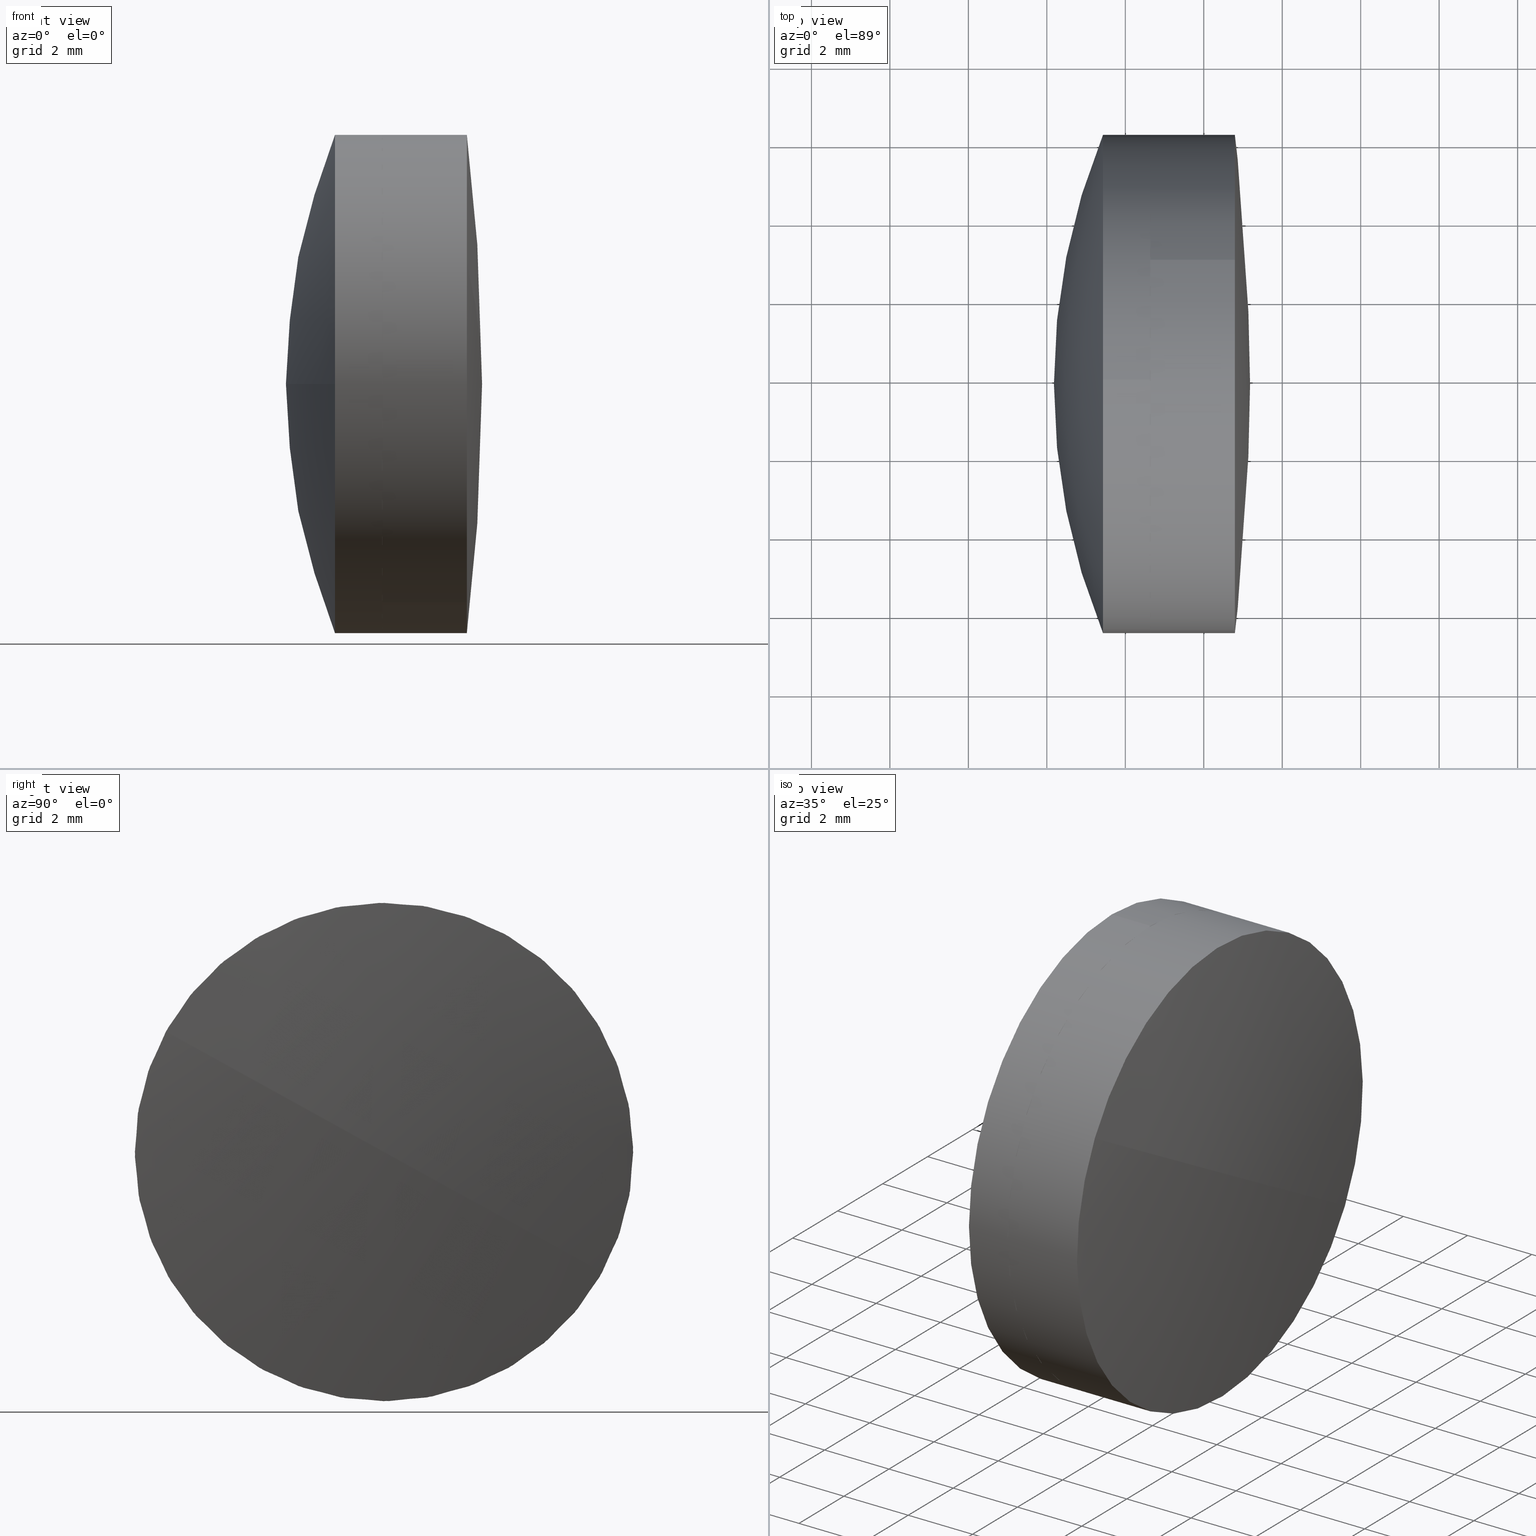
[diagram: canonical four-view strip — front | top / right | iso, engineering-drawing reading convention]
A machine part, canonical four-view strip (front | top / right | iso — engineering-drawing reading convention). The complete STEP part file that produces these views, byte-faithful:
ISO-10303-21;
HEADER;
FILE_DESCRIPTION (( 'STEP AP203' ),
    '1' );
FILE_NAME ('145272.STEP',
    '2024-05-11T02:47:36',
    ( '' ),
    ( '' ),
    'SwSTEP 2.0',
    'SolidWorks 2020',
    '' );
FILE_SCHEMA (( 'CONFIG_CONTROL_DESIGN' ));
ENDSEC;

DATA;
#1 = CARTESIAN_POINT ( 'NONE',  ( -66.56896664335823743, 13.86148696857247842, 6.349999999999999645 ) ) ;
#2 = ORIENTED_EDGE ( 'NONE', *, *, #291, .T. ) ;
#3 =( GEOMETRIC_REPRESENTATION_CONTEXT ( 3 ) GLOBAL_UNCERTAINTY_ASSIGNED_CONTEXT ( ( #8 ) ) GLOBAL_UNIT_ASSIGNED_CONTEXT ( ( #436, #433, #284 ) ) REPRESENTATION_CONTEXT ( 'NONE', 'WORKASPACE' ) );
#4 = ADVANCED_FACE ( 'NONE', ( #252 ), #128, .T. ) ;
#5 = DIRECTION ( 'NONE',  ( 1.173094865929737913E-16, 0.4836518060285192044, 0.8752604929535846567 ) ) ;
#6 = SPHERICAL_SURFACE ( 'NONE', #271, 52.14000000000000767 ) ;
#7 = FACE_OUTER_BOUND ( 'NONE', #304, .T. ) ;
#8 = UNCERTAINTY_MEASURE_WITH_UNIT (LENGTH_MEASURE( 1.000000000000000082E-05 ), #436, 'distance_accuracy_value', 'NONE');
#9 = DIRECTION ( 'NONE',  ( 0.000000000000000000, 0.4836518060285191489, 0.8752604929535845457 ) ) ;
#10 = APPROVAL_PERSON_ORGANIZATION ( #360, #340, #251 ) ;
#11 = EDGE_CURVE ( 'NONE', #445, #209, #308, .T. ) ;
#12 = FACE_OUTER_BOUND ( 'NONE', #288, .T. ) ;
#13 = PRODUCT ( '145272', '145272', '', ( #193 ) ) ;
#14 = CALENDAR_DATE ( 2024, 11, 5 ) ;
#15 = ADVANCED_FACE ( 'NONE', ( #332 ), #49, .T. ) ;
#16 = CC_DESIGN_APPROVAL ( #364, ( #391 ) ) ;
#17 = DIRECTION ( 'NONE',  ( -1.000000000000000000, 4.163336342344351818E-17, 1.110223024625159006E-16 ) ) ;
#18 = DIRECTION ( 'NONE',  ( 0.000000000000000000, 0.000000000000000000, 1.000000000000000000 ) ) ;
#19 = APPROVAL_STATUS ( 'not_yet_approved' ) ;
#20 = DIRECTION ( 'NONE',  ( 0.000000000000000000, 0.4836518060285191489, 0.8752604929535845457 ) ) ;
#21 = PERSON_AND_ORGANIZATION ( #279, #171 ) ;
#22 = ORIENTED_EDGE ( 'NONE', *, *, #160, .F. ) ;
#23 = AXIS2_PLACEMENT_3D ( 'NONE', #341, #174, #169 ) ;
#24 = EDGE_CURVE ( 'NONE', #95, #265, #63, .T. ) ;
#25 = CARTESIAN_POINT ( 'NONE',  ( -67.81928922736018706, 13.86148696857247842, 0.000000000000000000 ) ) ;
#26 = ORIENTED_EDGE ( 'NONE', *, *, #397, .F. ) ;
#27 = SPHERICAL_SURFACE ( 'NONE', #111, 13.82000000000000206 ) ;
#28 = DIRECTION ( 'NONE',  ( -0.000000000000000000, 0.000000000000000000, 1.000000000000000000 ) ) ;
#29 = EDGE_CURVE ( 'NONE', #71, #95, #165, .T. ) ;
#30 = ORIENTED_EDGE ( 'NONE', *, *, #86, .F. ) ;
#31 = CARTESIAN_POINT ( 'NONE',  ( -63.20740906827801098, 8.303582838317279169, 3.071188968281062692 ) ) ;
#32 = CARTESIAN_POINT ( 'NONE',  ( -63.81928922736018706, 13.86148696857249263, -6.893438519050638758E-15 ) ) ;
#33 = CARTESIAN_POINT ( 'NONE',  ( -77.63928922736018023, 13.86148696857247842, 0.000000000000000000 ) ) ;
#34 = CIRCLE ( 'NONE', #122, 6.349999999999999645 ) ;
#35 = AXIS2_PLACEMENT_3D ( 'NONE', #62, #224, #137 ) ;
#36 = ORIENTED_EDGE ( 'NONE', *, *, #86, .T. ) ;
#37 = CARTESIAN_POINT ( 'NONE',  ( -67.81928922736018706, 13.86148696857247842, 0.000000000000000000 ) ) ;
#38 = ORIENTED_EDGE ( 'NONE', *, *, #24, .T. ) ;
#39 = ORIENTED_EDGE ( 'NONE', *, *, #291, .F. ) ;
#40 = CARTESIAN_POINT ( 'NONE',  ( -67.81928922736018706, 13.86148696857247842, 6.349999999999999645 ) ) ;
#41 = CARTESIAN_POINT ( 'NONE',  ( -63.20740906827801098, 10.79029800029139530, -5.557904130255268527 ) ) ;
#42 = EDGE_CURVE ( 'NONE', #396, #382, #98, .T. ) ;
#43 = AXIS2_PLACEMENT_3D ( 'NONE', #323, #394, #18 ) ;
#44 = DIRECTION ( 'NONE',  ( -1.000000000000000000, 4.163336342344351818E-17, 1.110223024625159006E-16 ) ) ;
#45 = CARTESIAN_POINT ( 'NONE',  ( -63.20740906827801098, 19.41939109882771675, -3.071188968281085341 ) ) ;
#46 = EDGE_CURVE ( 'NONE', #159, #306, #34, .T. ) ;
#47 = APPROVAL_DATE_TIME ( #363, #340 ) ;
#48 = ORIENTED_EDGE ( 'NONE', *, *, #243, .F. ) ;
#49 = CYLINDRICAL_SURFACE ( 'NONE', #132, 6.349999999999999645 ) ;
#50 = CIRCLE ( 'NONE', #390, 6.349999999999999645 ) ;
#51 = ORIENTED_EDGE ( 'NONE', *, *, #97, .T. ) ;
#52 = AXIS2_PLACEMENT_3D ( 'NONE', #212, #350, #150 ) ;
#53 = ORIENTED_EDGE ( 'NONE', *, *, #397, .T. ) ;
#54 = APPROVAL_STATUS ( 'not_yet_approved' ) ;
#55 = ORIENTED_EDGE ( 'NONE', *, *, #175, .F. ) ;
#56 = CARTESIAN_POINT ( 'NONE',  ( -65.36452242713134808, 20.21148696857247984, 0.000000000000000000 ) ) ;
#57 = VERTEX_POINT ( 'NONE', #430 ) ;
#58 = VERTEX_POINT ( 'NONE', #127 ) ;
#59 = VERTEX_POINT ( 'NONE', #163 ) ;
#60 = CC_DESIGN_PERSON_AND_ORGANIZATION_ASSIGNMENT ( #21, #257, ( #13 ) ) ;
#61 = APPLICATION_PROTOCOL_DEFINITION ( 'international standard', 'config_control_design', 1994, #272 ) ;
#62 = CARTESIAN_POINT ( 'NONE',  ( -63.81928922736018706, 13.86148696857249263, -6.484157397467768041E-15 ) ) ;
#63 = CIRCLE ( 'NONE', #213, 6.349999999999999645 ) ;
#64 = LOCAL_TIME ( 10, 47, 36.00000000000000000, #322 ) ;
#65 = DATE_AND_TIME ( #105, #85 ) ;
#66 = DIRECTION ( 'NONE',  ( -1.000000000000000000, 4.163336342344351818E-17, 1.110223024625159006E-16 ) ) ;
#67 = CC_DESIGN_DATE_AND_TIME_ASSIGNMENT ( #286, #404, ( #391 ) ) ;
#68 = DIRECTION ( 'NONE',  ( 0.000000000000000000, 0.8752604929535845457, -0.4836518060285189824 ) ) ;
#69 = FACE_OUTER_BOUND ( 'NONE', #412, .T. ) ;
#70 = AXIS2_PLACEMENT_3D ( 'NONE', #424, #115, #84 ) ;
#71 = VERTEX_POINT ( 'NONE', #258 ) ;
#72 = VERTEX_POINT ( 'NONE', #254 ) ;
#73 = CARTESIAN_POINT ( 'NONE',  ( -51.06928922736017995, 13.86148696857247842, 0.000000000000000000 ) ) ;
#74 = CC_DESIGN_DATE_AND_TIME_ASSIGNMENT ( #324, #126, ( #392 ) ) ;
#75 = CARTESIAN_POINT ( 'NONE',  ( -67.81928922736018706, 13.86148696857247842, -6.349999999999999645 ) ) ;
#76 = AXIS2_PLACEMENT_3D ( 'NONE', #242, #66, #261 ) ;
#77 = LOCAL_TIME ( 10, 47, 36.00000000000000000, #227 ) ;
#78 = ORIENTED_EDGE ( 'NONE', *, *, #222, .T. ) ;
#79 = FACE_OUTER_BOUND ( 'NONE', #428, .T. ) ;
#80 = EDGE_CURVE ( 'NONE', #344, #57, #371, .T. ) ;
#81 = CARTESIAN_POINT ( 'NONE',  ( -65.36452242713134808, 10.79029800029139530, -5.557904130255268527 ) ) ;
#82 = DIRECTION ( 'NONE',  ( -1.173094865929737913E-16, -0.4836518060285191489, -0.8752604929535845457 ) ) ;
#83 = CIRCLE ( 'NONE', #330, 6.349999999999999645 ) ;
#84 = DIRECTION ( 'NONE',  ( 0.000000000000000000, 0.4836518060285191489, 0.8752604929535845457 ) ) ;
#85 = LOCAL_TIME ( 10, 47, 36.00000000000000000, #161 ) ;
#86 = EDGE_CURVE ( 'NONE', #200, #358, #414, .T. ) ;
#87 = PERSON_AND_ORGANIZATION ( #279, #171 ) ;
#88 = CARTESIAN_POINT ( 'NONE',  ( -63.81928922736018706, 10.79029800029139707, -5.557904130255267638 ) ) ;
#89 = ORIENTED_EDGE ( 'NONE', *, *, #383, .F. ) ;
#90 = PERSON_AND_ORGANIZATION ( #279, #171 ) ;
#91 = ORIENTED_EDGE ( 'NONE', *, *, #46, .T. ) ;
#92 = PERSON_AND_ORGANIZATION_ROLE ( 'creator' ) ;
#93 = ORIENTED_EDGE ( 'NONE', *, *, #419, .F. ) ;
#94 = DIRECTION ( 'NONE',  ( 1.173094865929737913E-16, 0.4836518060285192044, 0.8752604929535846567 ) ) ;
#95 = VERTEX_POINT ( 'NONE', #56 ) ;
#96 = PERSON_AND_ORGANIZATION ( #279, #171 ) ;
#97 = EDGE_CURVE ( 'NONE', #382, #72, #179, .T. ) ;
#98 = LINE ( 'NONE', #88, #336 ) ;
#99 = SECURITY_CLASSIFICATION_LEVEL ( 'unclassified' ) ;
#100 = ORIENTED_EDGE ( 'NONE', *, *, #175, .T. ) ;
#101 = DIRECTION ( 'NONE',  ( 0.000000000000000000, 1.000000000000000000, 0.000000000000000000 ) ) ;
#102 = AXIS2_PLACEMENT_3D ( 'NONE', #135, #197, #230 ) ;
#103 = CIRCLE ( 'NONE', #180, 52.14000000000001478 ) ;
#104 = ADVANCED_FACE ( 'NONE', ( #166 ), #138, .T. ) ;
#105 = CALENDAR_DATE ( 2024, 11, 5 ) ;
#106 = SPHERICAL_SURFACE ( 'NONE', #377, 52.14000000000000767 ) ;
#107 = DIRECTION ( 'NONE',  ( 1.000000000000000000, 0.000000000000000000, 0.000000000000000000 ) ) ;
#108 = ORIENTED_EDGE ( 'NONE', *, *, #383, .T. ) ;
#109 = ORIENTED_EDGE ( 'NONE', *, *, #222, .F. ) ;
#110 = DIRECTION ( 'NONE',  ( -0.000000000000000000, 0.000000000000000000, -1.000000000000000000 ) ) ;
#111 = AXIS2_PLACEMENT_3D ( 'NONE', #266, #379, #375 ) ;
#112 = CARTESIAN_POINT ( 'NONE',  ( -66.56896664335823743, 13.86148696857247842, 0.000000000000000000 ) ) ;
#113 = DIRECTION ( 'NONE',  ( -1.000000000000000000, -0.000000000000000000, -0.000000000000000000 ) ) ;
#114 = DESIGN_CONTEXT ( 'detailed design', #272, 'design' ) ;
#115 = DIRECTION ( 'NONE',  ( -1.000000000000000000, 4.163336342344351818E-17, 1.110223024625159006E-16 ) ) ;
#116 = AXIS2_PLACEMENT_3D ( 'NONE', #268, #334, #206 ) ;
#117 = AXIS2_PLACEMENT_3D ( 'NONE', #312, #148, #278 ) ;
#118 = FACE_OUTER_BOUND ( 'NONE', #221, .T. ) ;
#119 = EDGE_LOOP ( 'NONE', ( #274, #366, #26, #368, #447, #91 ) ) ;
#120 = DIRECTION ( 'NONE',  ( -1.000000000000000000, 4.163336342344351818E-17, 1.110223024625159006E-16 ) ) ;
#121 = CARTESIAN_POINT ( 'NONE',  ( -66.56896664335823743, 13.86148696857247842, -6.349999999999999645 ) ) ;
#122 = AXIS2_PLACEMENT_3D ( 'NONE', #434, #156, #20 ) ;
#123 = COORDINATED_UNIVERSAL_TIME_OFFSET ( 8, 0, .AHEAD. ) ;
#124 = CIRCLE ( 'NONE', #117, 6.349999999999999645 ) ;
#125 = ADVANCED_FACE ( 'NONE', ( #210 ), #238, .T. ) ;
#126 = DATE_TIME_ROLE ( 'classification_date' ) ;
#127 = CARTESIAN_POINT ( 'NONE',  ( -66.56896664335823743, 20.21148696857247984, 0.000000000000000000 ) ) ;
#128 = CYLINDRICAL_SURFACE ( 'NONE', #35, 6.349999999999999645 ) ;
#129 = EDGE_LOOP ( 'NONE', ( #400, #108, #342, #55 ) ) ;
#130 = EDGE_CURVE ( 'NONE', #198, #358, #239, .T. ) ;
#131 = CARTESIAN_POINT ( 'NONE',  ( 0.000000000000000000, 0.000000000000000000, 0.000000000000000000 ) ) ;
#132 = AXIS2_PLACEMENT_3D ( 'NONE', #25, #361, #168 ) ;
#133 = EDGE_LOOP ( 'NONE', ( #22, #78, #405, #311 ) ) ;
#134 = VECTOR ( 'NONE', #420, 1000.000000000000000 ) ;
#135 = CARTESIAN_POINT ( 'NONE',  ( -65.36452242713134808, 13.86148696857249263, -6.312602049787652538E-15 ) ) ;
#136 = PERSON_AND_ORGANIZATION_ROLE ( 'creator' ) ;
#137 = DIRECTION ( 'NONE',  ( 0.000000000000000000, 0.4836518060285191489, 0.8752604929535845457 ) ) ;
#138 = SPHERICAL_SURFACE ( 'NONE', #262, 16.75000000000000000 ) ;
#139 = CARTESIAN_POINT ( 'NONE',  ( -51.06928922736017995, 13.86148696857247842, 0.000000000000000000 ) ) ;
#140 = AXIS2_PLACEMENT_3D ( 'NONE', #189, #328, #231 ) ;
#141 = EDGE_LOOP ( 'NONE', ( #349, #195, #416, #100 ) ) ;
#142 = DIRECTION ( 'NONE',  ( -1.000000000000000000, -0.000000000000000000, -0.000000000000000000 ) ) ;
#143 = ORIENTED_EDGE ( 'NONE', *, *, #151, .F. ) ;
#144 = DIRECTION ( 'NONE',  ( 0.000000000000000000, 0.8752604929535845457, -0.4836518060285191489 ) ) ;
#145 = CARTESIAN_POINT ( 'NONE',  ( -65.36452242713134808, 7.511486968572475220, -7.776507174585696107E-16 ) ) ;
#146 = CLOSED_SHELL ( 'NONE', ( #253, #380, #326, #444, #167, #4 ) ) ;
#147 = VECTOR ( 'NONE', #113, 1000.000000000000000 ) ;
#148 = DIRECTION ( 'NONE',  ( -1.000000000000000000, -0.000000000000000000, -0.000000000000000000 ) ) ;
#149 = VERTEX_POINT ( 'NONE', #145 ) ;
#150 = DIRECTION ( 'NONE',  ( 0.000000000000000000, 0.000000000000000000, 1.000000000000000000 ) ) ;
#151 = EDGE_CURVE ( 'NONE', #306, #396, #320, .T. ) ;
#152 = AXIS2_PLACEMENT_3D ( 'NONE', #255, #94, #403 ) ;
#153 = CARTESIAN_POINT ( 'NONE',  ( -65.36452242713134808, 13.86148696857247842, 0.000000000000000000 ) ) ;
#154 = DIRECTION ( 'NONE',  ( 0.000000000000000000, 0.000000000000000000, 1.000000000000000000 ) ) ;
#155 = AXIS2_PLACEMENT_3D ( 'NONE', #37, #386, #154 ) ;
#156 = DIRECTION ( 'NONE',  ( -1.000000000000000000, 4.163336342344351818E-17, 1.110223024625159006E-16 ) ) ;
#157 = CALENDAR_DATE ( 2024, 11, 5 ) ;
#158 = EDGE_LOOP ( 'NONE', ( #109, #294, #355, #373 ) ) ;
#159 = VERTEX_POINT ( 'NONE', #211 ) ;
#160 = EDGE_CURVE ( 'NONE', #59, #149, #246, .T. ) ;
#161 = COORDINATED_UNIVERSAL_TIME_OFFSET ( 8, 0, .AHEAD. ) ;
#162 = ORIENTED_EDGE ( 'NONE', *, *, #181, .F. ) ;
#163 = CARTESIAN_POINT ( 'NONE',  ( -63.81928922736018706, 13.86148696857247842, 0.000000000000000000 ) ) ;
#164 = PERSON_AND_ORGANIZATION ( #279, #171 ) ;
#165 = CIRCLE ( 'NONE', #43, 6.349999999999999645 ) ;
#166 = FACE_OUTER_BOUND ( 'NONE', #129, .T. ) ;
#167 = ADVANCED_FACE ( 'NONE', ( #69 ), #106, .T. ) ;
#168 = DIRECTION ( 'NONE',  ( 0.000000000000000000, 0.000000000000000000, 1.000000000000000000 ) ) ;
#169 = DIRECTION ( 'NONE',  ( 0.000000000000000000, 1.000000000000000000, 0.000000000000000000 ) ) ;
#170 = CARTESIAN_POINT ( 'NONE',  ( -77.63928922736018023, 13.86148696857249263, -4.949829177435797726E-15 ) ) ;
#171 = ORGANIZATION ( 'δָ��', 'δָ��', '' ) ;
#172 = MANIFOLD_SOLID_BREP ( '145272b-1-solid1', #146 ) ;
#173 = EDGE_LOOP ( 'NONE', ( #235, #438, #440, #300, #319, #229 ) ) ;
#174 = DIRECTION ( 'NONE',  ( -0.000000000000000000, 0.000000000000000000, -1.000000000000000000 ) ) ;
#175 = EDGE_CURVE ( 'NONE', #58, #57, #290, .T. ) ;
#176 = MANIFOLD_SOLID_BREP ( '145272a-1-solid1', #407 ) ;
#177 = DIRECTION ( 'NONE',  ( -1.173094865929737667E-16, -0.4836518060285189824, -0.8752604929535845457 ) ) ;
#178 = DIRECTION ( 'NONE',  ( 0.000000000000000000, 1.000000000000000000, 1.224646799147353207E-16 ) ) ;
#179 = CIRCLE ( 'NONE', #102, 6.349999999999999645 ) ;
#180 = AXIS2_PLACEMENT_3D ( 'NONE', #185, #5, #216 ) ;
#181 = EDGE_CURVE ( 'NONE', #344, #183, #50, .T. ) ;
#182 = DIRECTION ( 'NONE',  ( 0.000000000000000000, 0.8752604929535845457, -0.4836518060285191489 ) ) ;
#183 = VERTEX_POINT ( 'NONE', #1 ) ;
#184 = CARTESIAN_POINT ( 'NONE',  ( -63.81928922736018706, 13.86148696857249263, -6.484157397467768041E-15 ) ) ;
#185 = CARTESIAN_POINT ( 'NONE',  ( -114.9592892273601734, 13.86148696857249440, -8.064768495347047099E-16 ) ) ;
#186 = CIRCLE ( 'NONE', #298, 6.349999999999999645 ) ;
#187 = LINE ( 'NONE', #40, #147 ) ;
#188 = EDGE_CURVE ( 'NONE', #149, #71, #297, .T. ) ;
#189 = CARTESIAN_POINT ( 'NONE',  ( -77.63928922736018023, 13.86148696857249263, -4.949829177435797726E-15 ) ) ;
#190 = PERSON_AND_ORGANIZATION_ROLE ( 'classification_officer' ) ;
#191 = ORIENTED_EDGE ( 'NONE', *, *, #296, .F. ) ;
#192 = CC_DESIGN_APPROVAL ( #347, ( #392 ) ) ;
#193 = MECHANICAL_CONTEXT ( 'NONE', #247, 'mechanical' ) ;
#194 = ADVANCED_FACE ( 'NONE', ( #413 ), #27, .T. ) ;
#195 = ORIENTED_EDGE ( 'NONE', *, *, #181, .T. ) ;
#196 = APPROVAL_DATE_TIME ( #398, #364 ) ;
#197 = DIRECTION ( 'NONE',  ( -1.000000000000000000, 4.163336342344351818E-17, 1.110223024625159006E-16 ) ) ;
#198 = VERTEX_POINT ( 'NONE', #303 ) ;
#199 = DIRECTION ( 'NONE',  ( 1.000000000000000000, 0.000000000000000000, 0.000000000000000000 ) ) ;
#200 = VERTEX_POINT ( 'NONE', #32 ) ;
#201 = CC_DESIGN_SECURITY_CLASSIFICATION ( #392, ( #263 ) ) ;
#202 = DIRECTION ( 'NONE',  ( 0.000000000000000000, 0.8752604929535845457, -0.4836518060285190379 ) ) ;
#203 = EDGE_CURVE ( 'NONE', #200, #72, #352, .T. ) ;
#204 = DIRECTION ( 'NONE',  ( 0.000000000000000000, 0.000000000000000000, 1.000000000000000000 ) ) ;
#205 = DIRECTION ( 'NONE',  ( -1.000000000000000000, 4.163336342344351818E-17, 1.110223024625159006E-16 ) ) ;
#206 = DIRECTION ( 'NONE',  ( 0.000000000000000000, 0.000000000000000000, 1.000000000000000000 ) ) ;
#207 = EDGE_CURVE ( 'NONE', #159, #198, #307, .T. ) ;
#208 = AXIS2_PLACEMENT_3D ( 'NONE', #184, #120, #9 ) ;
#209 = VERTEX_POINT ( 'NONE', #31 ) ;
#210 = FACE_OUTER_BOUND ( 'NONE', #158, .T. ) ;
#211 = CARTESIAN_POINT ( 'NONE',  ( -63.20740906827801098, 16.93267593685358818, 5.557904130255254316 ) ) ;
#212 = CARTESIAN_POINT ( 'NONE',  ( -66.56896664335823743, 13.86148696857247842, 0.000000000000000000 ) ) ;
#213 = AXIS2_PLACEMENT_3D ( 'NONE', #329, #292, #293 ) ;
#214 = CIRCLE ( 'NONE', #415, 6.349999999999999645 ) ;
#215 = CARTESIAN_POINT ( 'NONE',  ( -66.56896664335823743, 13.86148696857247842, 0.000000000000000000 ) ) ;
#216 = DIRECTION ( 'NONE',  ( 0.000000000000000000, -0.8752604929535844347, 0.4836518060285190934 ) ) ;
#217 = PRODUCT_DEFINITION_SHAPE ( 'NONE', 'NONE',  #391 ) ;
#218 = CARTESIAN_POINT ( 'NONE',  ( -65.36452242713134808, 13.86148696857249263, -6.312602049787652538E-15 ) ) ;
#219 = ADVANCED_FACE ( 'NONE', ( #335 ), #236, .T. ) ;
#220 = VECTOR ( 'NONE', #205, 1000.000000000000000 ) ;
#221 = EDGE_LOOP ( 'NONE', ( #39, #232, #93, #143 ) ) ;
#222 = EDGE_CURVE ( 'NONE', #59, #95, #270, .T. ) ;
#223 = APPROVAL_ROLE ( '' ) ;
#224 = DIRECTION ( 'NONE',  ( -1.000000000000000000, 4.163336342344351818E-17, 1.110223024625159006E-16 ) ) ;
#225 = AXIS2_PLACEMENT_3D ( 'NONE', #33, #28, #295 ) ;
#226 = LOCAL_TIME ( 10, 47, 36.00000000000000000, #317 ) ;
#227 = COORDINATED_UNIVERSAL_TIME_OFFSET ( 8, 0, .AHEAD. ) ;
#228 = ORIENTED_EDGE ( 'NONE', *, *, #29, .T. ) ;
#229 = ORIENTED_EDGE ( 'NONE', *, *, #97, .F. ) ;
#230 = DIRECTION ( 'NONE',  ( 0.000000000000000000, 0.4836518060285191489, 0.8752604929535845457 ) ) ;
#231 = DIRECTION ( 'NONE',  ( 0.000000000000000000, 0.8752604929535844347, -0.4836518060285190934 ) ) ;
#232 = ORIENTED_EDGE ( 'NONE', *, *, #11, .T. ) ;
#233 = CC_DESIGN_PERSON_AND_ORGANIZATION_ASSIGNMENT ( #90, #190, ( #392 ) ) ;
#234 = AXIS2_PLACEMENT_3D ( 'NONE', #374, #299, #376 ) ;
#235 = ORIENTED_EDGE ( 'NONE', *, *, #42, .F. ) ;
#236 = SPHERICAL_SURFACE ( 'NONE', #23, 16.75000000000000000 ) ;
#237 = ORIENTED_EDGE ( 'NONE', *, *, #411, .F. ) ;
#238 = SPHERICAL_SURFACE ( 'NONE', #234, 13.82000000000000206 ) ;
#239 = CIRCLE ( 'NONE', #76, 6.349999999999999645 ) ;
#240 = CIRCLE ( 'NONE', #353, 6.349999999999999645 ) ;
#241 = ORIENTED_EDGE ( 'NONE', *, *, #333, .T. ) ;
#242 = CARTESIAN_POINT ( 'NONE',  ( -65.36452242713134808, 13.86148696857249263, -6.312602049787652538E-15 ) ) ;
#243 = EDGE_CURVE ( 'NONE', #209, #159, #83, .T. ) ;
#244 = CARTESIAN_POINT ( 'NONE',  ( -65.36452242713134808, 13.86148696857247842, -6.349999999999999645 ) ) ;
#245 = DIRECTION ( 'NONE',  ( -1.000000000000000000, -0.000000000000000000, -0.000000000000000000 ) ) ;
#246 = CIRCLE ( 'NONE', #314, 13.82000000000000206 ) ;
#247 = APPLICATION_CONTEXT ( 'configuration controlled 3d designs of mechanical parts and assemblies' ) ;
#248 = EDGE_CURVE ( 'NONE', #71, #183, #187, .T. ) ;
#249 = CARTESIAN_POINT ( 'NONE',  ( -114.9592892273601734, 13.86148696857249440, -8.064768495347047099E-16 ) ) ;
#250 = DIRECTION ( 'NONE',  ( -1.000000000000000000, -0.000000000000000000, -0.000000000000000000 ) ) ;
#251 = APPROVAL_ROLE ( '' ) ;
#252 = FACE_OUTER_BOUND ( 'NONE', #173, .T. ) ;
#253 = ADVANCED_FACE ( 'NONE', ( #273 ), #275, .T. ) ;
#254 = CARTESIAN_POINT ( 'NONE',  ( -65.36452242713134808, 8.303582838317234760, 3.071188968281087117 ) ) ;
#255 = CARTESIAN_POINT ( 'NONE',  ( -77.63928922736018023, 13.86148696857249263, -4.949829177435797726E-15 ) ) ;
#256 = ORIENTED_EDGE ( 'NONE', *, *, #370, .T. ) ;
#257 = PERSON_AND_ORGANIZATION_ROLE ( 'design_owner' ) ;
#258 = CARTESIAN_POINT ( 'NONE',  ( -65.36452242713134808, 13.86148696857247842, 6.349999999999999645 ) ) ;
#259 = PERSON_AND_ORGANIZATION_ROLE ( 'design_supplier' ) ;
#260 = ORIENTED_EDGE ( 'NONE', *, *, #203, .T. ) ;
#261 = DIRECTION ( 'NONE',  ( 0.000000000000000000, 0.4836518060285191489, 0.8752604929535845457 ) ) ;
#262 = AXIS2_PLACEMENT_3D ( 'NONE', #73, #110, #101 ) ;
#263 = PRODUCT_DEFINITION_FORMATION_WITH_SPECIFIED_SOURCE ( '�κ�', '', #13, .NOT_KNOWN. ) ;
#264 = DIRECTION ( 'NONE',  ( -1.000000000000000000, 4.163336342344351818E-17, 1.110223024625159006E-16 ) ) ;
#265 = VERTEX_POINT ( 'NONE', #244 ) ;
#266 = CARTESIAN_POINT ( 'NONE',  ( -77.63928922736018023, 13.86148696857247842, 0.000000000000000000 ) ) ;
#267 = ORIENTED_EDGE ( 'NONE', *, *, #188, .T. ) ;
#268 = CARTESIAN_POINT ( 'NONE',  ( -65.36452242713134808, 13.86148696857247842, 0.000000000000000000 ) ) ;
#269 = DIRECTION ( 'NONE',  ( -1.173094865929737913E-16, -0.4836518060285191489, -0.8752604929535845457 ) ) ;
#270 = CIRCLE ( 'NONE', #225, 13.81999999999999851 ) ;
#271 = AXIS2_PLACEMENT_3D ( 'NONE', #249, #82, #182 ) ;
#272 = APPLICATION_CONTEXT ( 'configuration controlled 3d designs of mechanical parts and assemblies' ) ;
#273 = FACE_OUTER_BOUND ( 'NONE', #119, .T. ) ;
#274 = ORIENTED_EDGE ( 'NONE', *, *, #151, .T. ) ;
#275 = CYLINDRICAL_SURFACE ( 'NONE', #208, 6.349999999999999645 ) ;
#276 = DIRECTION ( 'NONE',  ( 0.000000000000000000, 0.8752604929535844347, -0.4836518060285190934 ) ) ;
#277 = LINE ( 'NONE', #75, #134 ) ;
#278 = DIRECTION ( 'NONE',  ( 0.000000000000000000, 0.000000000000000000, 1.000000000000000000 ) ) ;
#279 = PERSON ( 'δָ��', 'δָ��', 'δָ��', ('δָ��'), ('δָ��'), ('δָ��') ) ;
#280 = CALENDAR_DATE ( 2024, 11, 5 ) ;
#281 = ORIENTED_EDGE ( 'NONE', *, *, #130, .T. ) ;
#282 = ADVANCED_FACE ( 'NONE', ( #12 ), #343, .T. ) ;
#283 = AXIS2_PLACEMENT_3D ( 'NONE', #365, #289, #432 ) ;
#284 =( NAMED_UNIT ( * ) SI_UNIT ( $, .STERADIAN. ) SOLID_ANGLE_UNIT ( ) );
#285 = ORIENTED_EDGE ( 'NONE', *, *, #248, .T. ) ;
#286 = DATE_AND_TIME ( #157, #321 ) ;
#287 = DIRECTION ( 'NONE',  ( -1.173094865929737667E-16, -0.4836518060285189824, -0.8752604929535845457 ) ) ;
#288 = EDGE_LOOP ( 'NONE', ( #38, #437, #302, #191, #325, #228 ) ) ;
#289 = DIRECTION ( 'NONE',  ( 0.000000000000000000, 1.224646799147353207E-16, -1.000000000000000000 ) ) ;
#290 = CIRCLE ( 'NONE', #362, 16.75000000000000000 ) ;
#291 = EDGE_CURVE ( 'NONE', #445, #306, #103, .T. ) ;
#292 = DIRECTION ( 'NONE',  ( -1.000000000000000000, -0.000000000000000000, -0.000000000000000000 ) ) ;
#293 = DIRECTION ( 'NONE',  ( 0.000000000000000000, 0.000000000000000000, 1.000000000000000000 ) ) ;
#294 = ORIENTED_EDGE ( 'NONE', *, *, #160, .T. ) ;
#295 = DIRECTION ( 'NONE',  ( 1.000000000000000000, 0.000000000000000000, 0.000000000000000000 ) ) ;
#296 = EDGE_CURVE ( 'NONE', #183, #58, #124, .T. ) ;
#297 = CIRCLE ( 'NONE', #116, 6.349999999999999645 ) ;
#298 = AXIS2_PLACEMENT_3D ( 'NONE', #153, #250, #381 ) ;
#299 = DIRECTION ( 'NONE',  ( -0.000000000000000000, 0.000000000000000000, -1.000000000000000000 ) ) ;
#300 = ORIENTED_EDGE ( 'NONE', *, *, #207, .T. ) ;
#301 = DIRECTION ( 'NONE',  ( 0.000000000000000000, 0.4836518060285191489, 0.8752604929535845457 ) ) ;
#302 = ORIENTED_EDGE ( 'NONE', *, *, #439, .F. ) ;
#303 = CARTESIAN_POINT ( 'NONE',  ( -65.36452242713134808, 16.93267593685358818, 5.557904130255255204 ) ) ;
#304 = EDGE_LOOP ( 'NONE', ( #30, #260, #241, #281 ) ) ;
#305 = CC_DESIGN_PERSON_AND_ORGANIZATION_ASSIGNMENT ( #87, #259, ( #263 ) ) ;
#306 = VERTEX_POINT ( 'NONE', #45 ) ;
#307 = LINE ( 'NONE', #417, #220 ) ;
#308 = CIRCLE ( 'NONE', #435, 52.14000000000000057 ) ;
#309 = APPROVAL_PERSON_ORGANIZATION ( #395, #347, #223 ) ;
#310 = DIRECTION ( 'NONE',  ( -1.000000000000000000, 4.163336342344351818E-17, 1.110223024625159006E-16 ) ) ;
#311 = ORIENTED_EDGE ( 'NONE', *, *, #188, .F. ) ;
#312 = CARTESIAN_POINT ( 'NONE',  ( -66.56896664335823743, 13.86148696857247842, 0.000000000000000000 ) ) ;
#313 = SPHERICAL_SURFACE ( 'NONE', #331, 13.81999999999999851 ) ;
#314 = AXIS2_PLACEMENT_3D ( 'NONE', #406, #339, #178 ) ;
#315 = CARTESIAN_POINT ( 'NONE',  ( -77.63928922736018023, 13.86148696857249263, -4.949829177435797726E-15 ) ) ;
#316 = PERSON_AND_ORGANIZATION ( #279, #171 ) ;
#317 = COORDINATED_UNIVERSAL_TIME_OFFSET ( 8, 0, .AHEAD. ) ;
#318 = CARTESIAN_POINT ( 'NONE',  ( -114.9592892273601734, 13.86148696857249440, -8.064768495347047099E-16 ) ) ;
#319 = ORIENTED_EDGE ( 'NONE', *, *, #333, .F. ) ;
#320 = CIRCLE ( 'NONE', #401, 6.349999999999999645 ) ;
#321 = LOCAL_TIME ( 10, 47, 36.00000000000000000, #123 ) ;
#322 = COORDINATED_UNIVERSAL_TIME_OFFSET ( 8, 0, .AHEAD. ) ;
#323 = CARTESIAN_POINT ( 'NONE',  ( -65.36452242713134808, 13.86148696857247842, 0.000000000000000000 ) ) ;
#324 = DATE_AND_TIME ( #14, #226 ) ;
#325 = ORIENTED_EDGE ( 'NONE', *, *, #248, .F. ) ;
#326 = ADVANCED_FACE ( 'NONE', ( #7 ), #313, .F. ) ;
#327 = ADVANCED_BREP_SHAPE_REPRESENTATION ( '145272', ( #176, #172, #408 ), #3 ) ;
#328 = DIRECTION ( 'NONE',  ( -1.173094865929737667E-16, -0.4836518060285190934, -0.8752604929535844347 ) ) ;
#329 = CARTESIAN_POINT ( 'NONE',  ( -65.36452242713134808, 13.86148696857247842, 0.000000000000000000 ) ) ;
#330 = AXIS2_PLACEMENT_3D ( 'NONE', #369, #441, #446 ) ;
#331 = AXIS2_PLACEMENT_3D ( 'NONE', #315, #422, #276 ) ;
#332 = FACE_OUTER_BOUND ( 'NONE', #359, .T. ) ;
#333 = EDGE_CURVE ( 'NONE', #72, #198, #345, .T. ) ;
#334 = DIRECTION ( 'NONE',  ( -1.000000000000000000, -0.000000000000000000, -0.000000000000000000 ) ) ;
#335 = FACE_OUTER_BOUND ( 'NONE', #141, .T. ) ;
#336 = VECTOR ( 'NONE', #17, 1000.000000000000000 ) ;
#337 = DIRECTION ( 'NONE',  ( -0.000000000000000000, 0.000000000000000000, 1.000000000000000000 ) ) ;
#338 = APPROVAL_DATE_TIME ( #65, #347 ) ;
#339 = DIRECTION ( 'NONE',  ( 0.000000000000000000, 1.224646799147353207E-16, -1.000000000000000000 ) ) ;
#340 = APPROVAL ( #357, 'δָ��' ) ;
#341 = CARTESIAN_POINT ( 'NONE',  ( -51.06928922736017995, 13.86148696857247842, 0.000000000000000000 ) ) ;
#342 = ORIENTED_EDGE ( 'NONE', *, *, #80, .T. ) ;
#343 = CYLINDRICAL_SURFACE ( 'NONE', #155, 6.349999999999999645 ) ;
#344 = VERTEX_POINT ( 'NONE', #387 ) ;
#345 = CIRCLE ( 'NONE', #372, 6.349999999999999645 ) ;
#346 = VERTEX_POINT ( 'NONE', #121 ) ;
#347 = APPROVAL ( #19, 'δָ��' ) ;
#348 = CARTESIAN_POINT ( 'NONE',  ( -62.81928922736017284, 13.86148696857249440, -8.139312672385491349E-15 ) ) ;
#349 = ORIENTED_EDGE ( 'NONE', *, *, #80, .F. ) ;
#350 = DIRECTION ( 'NONE',  ( -1.000000000000000000, -0.000000000000000000, -0.000000000000000000 ) ) ;
#351 = CARTESIAN_POINT ( 'NONE',  ( -65.36452242713134808, 13.86148696857249263, -6.312602049787652538E-15 ) ) ;
#352 = CIRCLE ( 'NONE', #421, 13.81999999999999851 ) ;
#353 = AXIS2_PLACEMENT_3D ( 'NONE', #215, #245, #384 ) ;
#354 = SPHERICAL_SURFACE ( 'NONE', #140, 13.81999999999999851 ) ;
#355 = ORIENTED_EDGE ( 'NONE', *, *, #370, .F. ) ;
#356 = PRODUCT_RELATED_PRODUCT_CATEGORY ( 'detail', '', ( #13 ) ) ;
#357 = APPROVAL_STATUS ( 'not_yet_approved' ) ;
#358 = VERTEX_POINT ( 'NONE', #418 ) ;
#359 = EDGE_LOOP ( 'NONE', ( #237, #256, #267, #285, #162, #89 ) ) ;
#360 = PERSON_AND_ORGANIZATION ( #279, #171 ) ;
#361 = DIRECTION ( 'NONE',  ( -1.000000000000000000, -0.000000000000000000, -0.000000000000000000 ) ) ;
#362 = AXIS2_PLACEMENT_3D ( 'NONE', #139, #337, #107 ) ;
#363 = DATE_AND_TIME ( #393, #77 ) ;
#364 = APPROVAL ( #54, 'δָ��' ) ;
#365 = CARTESIAN_POINT ( 'NONE',  ( -51.06928922736017995, 13.86148696857247842, 0.000000000000000000 ) ) ;
#366 = ORIENTED_EDGE ( 'NONE', *, *, #42, .T. ) ;
#367 = DIRECTION ( 'NONE',  ( 0.000000000000000000, 0.000000000000000000, 1.000000000000000000 ) ) ;
#368 = ORIENTED_EDGE ( 'NONE', *, *, #130, .F. ) ;
#369 = CARTESIAN_POINT ( 'NONE',  ( -63.20740906827801098, 13.86148696857249263, -6.552089741560200011E-15 ) ) ;
#370 = EDGE_CURVE ( 'NONE', #265, #149, #186, .T. ) ;
#371 = CIRCLE ( 'NONE', #283, 16.75000000000000000 ) ;
#372 = AXIS2_PLACEMENT_3D ( 'NONE', #351, #310, #426 ) ;
#373 = ORIENTED_EDGE ( 'NONE', *, *, #24, .F. ) ;
#374 = CARTESIAN_POINT ( 'NONE',  ( -77.63928922736018023, 13.86148696857247842, 0.000000000000000000 ) ) ;
#375 = DIRECTION ( 'NONE',  ( 0.000000000000000000, 1.000000000000000000, 0.000000000000000000 ) ) ;
#376 = DIRECTION ( 'NONE',  ( 0.000000000000000000, 1.000000000000000000, 0.000000000000000000 ) ) ;
#377 = AXIS2_PLACEMENT_3D ( 'NONE', #409, #269, #144 ) ;
#378 = CIRCLE ( 'NONE', #70, 6.349999999999999645 ) ;
#379 = DIRECTION ( 'NONE',  ( -0.000000000000000000, 0.000000000000000000, -1.000000000000000000 ) ) ;
#380 = ADVANCED_FACE ( 'NONE', ( #118 ), #6, .T. ) ;
#381 = DIRECTION ( 'NONE',  ( 0.000000000000000000, 0.000000000000000000, 1.000000000000000000 ) ) ;
#382 = VERTEX_POINT ( 'NONE', #81 ) ;
#383 = EDGE_CURVE ( 'NONE', #346, #344, #402, .T. ) ;
#384 = DIRECTION ( 'NONE',  ( 0.000000000000000000, 0.000000000000000000, 1.000000000000000000 ) ) ;
#385 = CC_DESIGN_APPROVAL ( #340, ( #263 ) ) ;
#386 = DIRECTION ( 'NONE',  ( -1.000000000000000000, -0.000000000000000000, -0.000000000000000000 ) ) ;
#387 = CARTESIAN_POINT ( 'NONE',  ( -66.56896664335823743, 7.511486968572478773, -7.776507174585692163E-16 ) ) ;
#388 = DIRECTION ( 'NONE',  ( 0.000000000000000000, 0.4836518060285191489, 0.8752604929535845457 ) ) ;
#389 = ORIENTED_EDGE ( 'NONE', *, *, #203, .F. ) ;
#390 = AXIS2_PLACEMENT_3D ( 'NONE', #112, #142, #204 ) ;
#391 = PRODUCT_DEFINITION ( 'δ֪', '', #263, #114 ) ;
#392 = SECURITY_CLASSIFICATION ( '', '', #99 ) ;
#393 = CALENDAR_DATE ( 2024, 11, 5 ) ;
#394 = DIRECTION ( 'NONE',  ( -1.000000000000000000, -0.000000000000000000, -0.000000000000000000 ) ) ;
#395 = PERSON_AND_ORGANIZATION ( #279, #171 ) ;
#396 = VERTEX_POINT ( 'NONE', #41 ) ;
#397 = EDGE_CURVE ( 'NONE', #358, #382, #214, .T. ) ;
#398 = DATE_AND_TIME ( #280, #64 ) ;
#399 = ORIENTED_EDGE ( 'NONE', *, *, #11, .F. ) ;
#400 = ORIENTED_EDGE ( 'NONE', *, *, #439, .T. ) ;
#401 = AXIS2_PLACEMENT_3D ( 'NONE', #443, #264, #301 ) ;
#402 = CIRCLE ( 'NONE', #52, 6.349999999999999645 ) ;
#403 = DIRECTION ( 'NONE',  ( 0.000000000000000000, -0.8752604929535844347, 0.4836518060285191489 ) ) ;
#404 = DATE_TIME_ROLE ( 'creation_date' ) ;
#405 = ORIENTED_EDGE ( 'NONE', *, *, #29, .F. ) ;
#406 = CARTESIAN_POINT ( 'NONE',  ( -77.63928922736018023, 13.86148696857247842, 0.000000000000000000 ) ) ;
#407 = CLOSED_SHELL ( 'NONE', ( #282, #125, #104, #219, #194, #15 ) ) ;
#408 = AXIS2_PLACEMENT_3D ( 'NONE', #131, #367, #199 ) ;
#409 = CARTESIAN_POINT ( 'NONE',  ( -114.9592892273601734, 13.86148696857249440, -8.064768495347047099E-16 ) ) ;
#410 = ORIENTED_EDGE ( 'NONE', *, *, #46, .F. ) ;
#411 = EDGE_CURVE ( 'NONE', #265, #346, #277, .T. ) ;
#412 = EDGE_LOOP ( 'NONE', ( #399, #2, #410, #48 ) ) ;
#413 = FACE_OUTER_BOUND ( 'NONE', #133, .T. ) ;
#414 = CIRCLE ( 'NONE', #152, 13.82000000000000206 ) ;
#415 = AXIS2_PLACEMENT_3D ( 'NONE', #218, #44, #388 ) ;
#416 = ORIENTED_EDGE ( 'NONE', *, *, #296, .T. ) ;
#417 = CARTESIAN_POINT ( 'NONE',  ( -63.81928922736018706, 16.93267593685358818, 5.557904130255255204 ) ) ;
#418 = CARTESIAN_POINT ( 'NONE',  ( -65.36452242713134808, 19.41939109882775227, -3.071188968281102216 ) ) ;
#419 = EDGE_CURVE ( 'NONE', #396, #209, #378, .T. ) ;
#420 = DIRECTION ( 'NONE',  ( -1.000000000000000000, -0.000000000000000000, -0.000000000000000000 ) ) ;
#421 = AXIS2_PLACEMENT_3D ( 'NONE', #170, #177, #68 ) ;
#422 = DIRECTION ( 'NONE',  ( -1.173094865929737667E-16, -0.4836518060285190934, -0.8752604929535844347 ) ) ;
#423 = APPROVAL_PERSON_ORGANIZATION ( #316, #364, #427 ) ;
#424 = CARTESIAN_POINT ( 'NONE',  ( -63.20740906827801098, 13.86148696857249263, -6.552089741560200011E-15 ) ) ;
#425 = CC_DESIGN_PERSON_AND_ORGANIZATION_ASSIGNMENT ( #164, #92, ( #391 ) ) ;
#426 = DIRECTION ( 'NONE',  ( 0.000000000000000000, 0.4836518060285191489, 0.8752604929535845457 ) ) ;
#427 = APPROVAL_ROLE ( '' ) ;
#428 = EDGE_LOOP ( 'NONE', ( #389, #36, #53, #51 ) ) ;
#429 = APPLICATION_PROTOCOL_DEFINITION ( 'international standard', 'config_control_design', 1994, #247 ) ;
#430 = CARTESIAN_POINT ( 'NONE',  ( -67.81928922736018706, 13.86148696857248019, 0.000000000000000000 ) ) ;
#431 = CC_DESIGN_PERSON_AND_ORGANIZATION_ASSIGNMENT ( #96, #136, ( #263 ) ) ;
#432 = DIRECTION ( 'NONE',  ( 0.000000000000000000, 1.000000000000000000, 1.224646799147353454E-16 ) ) ;
#433 =( NAMED_UNIT ( * ) PLANE_ANGLE_UNIT ( ) SI_UNIT ( $, .RADIAN. ) );
#434 = CARTESIAN_POINT ( 'NONE',  ( -63.20740906827801098, 13.86148696857249263, -6.552089741560200011E-15 ) ) ;
#435 = AXIS2_PLACEMENT_3D ( 'NONE', #318, #287, #202 ) ;
#436 =( LENGTH_UNIT ( ) NAMED_UNIT ( * ) SI_UNIT ( .MILLI., .METRE. ) );
#437 = ORIENTED_EDGE ( 'NONE', *, *, #411, .T. ) ;
#438 = ORIENTED_EDGE ( 'NONE', *, *, #419, .T. ) ;
#439 = EDGE_CURVE ( 'NONE', #58, #346, #240, .T. ) ;
#440 = ORIENTED_EDGE ( 'NONE', *, *, #243, .T. ) ;
#441 = DIRECTION ( 'NONE',  ( -1.000000000000000000, 4.163336342344351818E-17, 1.110223024625159006E-16 ) ) ;
#442 = SHAPE_DEFINITION_REPRESENTATION ( #217, #327 ) ;
#443 = CARTESIAN_POINT ( 'NONE',  ( -63.20740906827801098, 13.86148696857249263, -6.552089741560200011E-15 ) ) ;
#444 = ADVANCED_FACE ( 'NONE', ( #79 ), #354, .F. ) ;
#445 = VERTEX_POINT ( 'NONE', #348 ) ;
#446 = DIRECTION ( 'NONE',  ( 0.000000000000000000, 0.4836518060285191489, 0.8752604929535845457 ) ) ;
#447 = ORIENTED_EDGE ( 'NONE', *, *, #207, .F. ) ;
ENDSEC;
END-ISO-10303-21;
